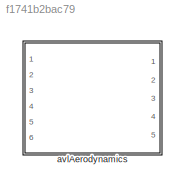
MODEL slx_f1741b2bac79
KIND library
CONFIG AbsTol = auto
CONFIG EnableMultiTasking = off
CONFIG FixedStep = auto
CONFIG MaxStep = auto
CONFIG MinStep = auto
CONFIG RelTol = 1e-3
CONFIG SampleTimeConstraint = Unconstrained
CONFIG SolverName = VariableStepAuto
CONFIG StartTime = 0.0
CONFIG StopTime = 10.0
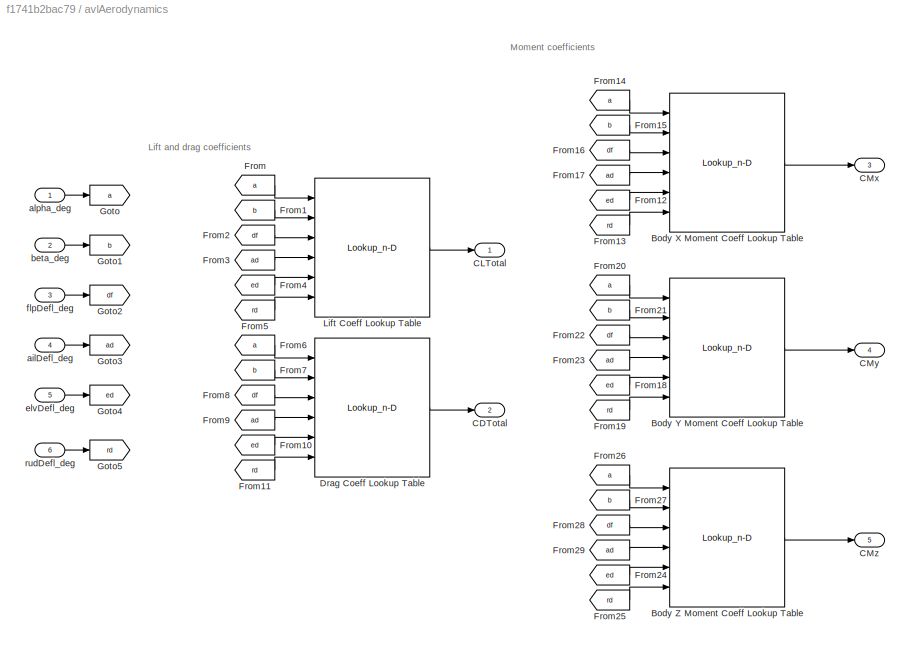
BLOCK [SubSystem] avlAerodynamics
  Ports = [6, 5]
  RequestExecContextInheritance = off
BLOCK [Lookup_n-D] avlAerodynamics/Body X Moment Coeff Lookup Table
  BreakpointsForDimension3 = [5, 7]
  DataSpecification = Lookup table object
  InputPortMap = u0,u1,u2,u3,u4,u5
  InternalRulePriority = Speed
  LookupTableObject = CMxTable
  NumberOfTableDimensions = 6
  Ports = [6, 1]
  RndMeth = Simplest
  Table = reshape(repmat([4 5 6;16 19 20;10 18 23],1,2),[3,3,2])
BLOCK [Lookup_n-D] avlAerodynamics/Body Y Moment Coeff Lookup Table
  BreakpointsForDimension3 = [5, 7]
  DataSpecification = Lookup table object
  InputPortMap = u0,u1,u2,u3,u4,u5
  InternalRulePriority = Speed
  LookupTableObject = CMyTable
  NumberOfTableDimensions = 6
  Ports = [6, 1]
  RndMeth = Simplest
  Table = reshape(repmat([4 5 6;16 19 20;10 18 23],1,2),[3,3,2])
BLOCK [Lookup_n-D] avlAerodynamics/Body Z Moment Coeff Lookup Table
  BreakpointsForDimension3 = [5, 7]
  DataSpecification = Lookup table object
  InputPortMap = u0,u1,u2,u3,u4,u5
  InternalRulePriority = Speed
  LookupTableObject = CMzTable
  NumberOfTableDimensions = 6
  Ports = [6, 1]
  RndMeth = Simplest
  Table = reshape(repmat([4 5 6;16 19 20;10 18 23],1,2),[3,3,2])
BLOCK [Outport] avlAerodynamics/CDTotal
  Port = 2
  VectorParamsAs1DForOutWhenUnconnected = off
BLOCK [Outport] avlAerodynamics/CLTotal
  VectorParamsAs1DForOutWhenUnconnected = off
BLOCK [Outport] avlAerodynamics/CMx
  Port = 3
  VectorParamsAs1DForOutWhenUnconnected = off
BLOCK [Outport] avlAerodynamics/CMy
  Port = 4
  VectorParamsAs1DForOutWhenUnconnected = off
BLOCK [Outport] avlAerodynamics/CMz
  Port = 5
  VectorParamsAs1DForOutWhenUnconnected = off
BLOCK [Lookup_n-D] avlAerodynamics/Drag Coeff Lookup Table
  BreakpointsForDimension3 = [5, 7]
  DataSpecification = Lookup table object
  InputPortMap = u0,u1,u2,u3,u4,u5
  InternalRulePriority = Speed
  LookupTableObject = CDTable
  NumberOfTableDimensions = 6
  Ports = [6, 1]
  RndMeth = Simplest
  Table = reshape(repmat([4 5 6;16 19 20;10 18 23],1,2),[3,3,2])
BLOCK [From] avlAerodynamics/From
  GotoTag = a
BLOCK [From] avlAerodynamics/From1
  GotoTag = b
BLOCK [From] avlAerodynamics/From10
  GotoTag = ed
BLOCK [From] avlAerodynamics/From11
  GotoTag = rd
BLOCK [From] avlAerodynamics/From12
  GotoTag = ed
BLOCK [From] avlAerodynamics/From13
  GotoTag = rd
BLOCK [From] avlAerodynamics/From14
  GotoTag = a
BLOCK [From] avlAerodynamics/From15
  GotoTag = b
BLOCK [From] avlAerodynamics/From16
  GotoTag = df
BLOCK [From] avlAerodynamics/From17
  GotoTag = ad
BLOCK [From] avlAerodynamics/From18
  GotoTag = ed
BLOCK [From] avlAerodynamics/From19
  GotoTag = rd
BLOCK [From] avlAerodynamics/From2
  GotoTag = df
BLOCK [From] avlAerodynamics/From20
  GotoTag = a
BLOCK [From] avlAerodynamics/From21
  GotoTag = b
BLOCK [From] avlAerodynamics/From22
  GotoTag = df
BLOCK [From] avlAerodynamics/From23
  GotoTag = ad
BLOCK [From] avlAerodynamics/From24
  GotoTag = ed
BLOCK [From] avlAerodynamics/From25
  GotoTag = rd
BLOCK [From] avlAerodynamics/From26
  GotoTag = a
BLOCK [From] avlAerodynamics/From27
  GotoTag = b
BLOCK [From] avlAerodynamics/From28
  GotoTag = df
BLOCK [From] avlAerodynamics/From29
  GotoTag = ad
BLOCK [From] avlAerodynamics/From3
  GotoTag = ad
BLOCK [From] avlAerodynamics/From4
  GotoTag = ed
BLOCK [From] avlAerodynamics/From5
  GotoTag = rd
BLOCK [From] avlAerodynamics/From6
  GotoTag = a
BLOCK [From] avlAerodynamics/From7
  GotoTag = b
BLOCK [From] avlAerodynamics/From8
  GotoTag = df
BLOCK [From] avlAerodynamics/From9
  GotoTag = ad
BLOCK [Goto] avlAerodynamics/Goto
  GotoTag = a
BLOCK [Goto] avlAerodynamics/Goto1
  GotoTag = b
BLOCK [Goto] avlAerodynamics/Goto2
  GotoTag = df
BLOCK [Goto] avlAerodynamics/Goto3
  GotoTag = ad
BLOCK [Goto] avlAerodynamics/Goto4
  GotoTag = ed
BLOCK [Goto] avlAerodynamics/Goto5
  GotoTag = rd
BLOCK [Lookup_n-D] avlAerodynamics/Lift Coeff Lookup Table
  BreakpointsForDimension3 = [5, 7]
  DataSpecification = Lookup table object
  InputPortMap = u0,u1,u2,u3,u4,u5
  InternalRulePriority = Speed
  LookupTableObject = CLTable
  NumberOfTableDimensions = 6
  Ports = [6, 1]
  RndMeth = Simplest
  Table = reshape(repmat([4 5 6;16 19 20;10 18 23],1,2),[3,3,2])
BLOCK [Inport] avlAerodynamics/ailDefl_deg
  Port = 4
BLOCK [Inport] avlAerodynamics/alpha_deg
BLOCK [Inport] avlAerodynamics/beta_deg
  Port = 2
BLOCK [Inport] avlAerodynamics/elvDefl_deg
  Port = 5
BLOCK [Inport] avlAerodynamics/flpDefl_deg
  Port = 3
BLOCK [Inport] avlAerodynamics/rudDefl_deg
  Port = 6
ANNOTATION avlAerodynamics: Lift and drag coefficients
ANNOTATION avlAerodynamics: Moment coefficients
LINE avlAerodynamics/Body X Moment Coeff Lookup Table:1 -> avlAerodynamics/CMx:1
LINE avlAerodynamics/Body Y Moment Coeff Lookup Table:1 -> avlAerodynamics/CMy:1
LINE avlAerodynamics/Body Z Moment Coeff Lookup Table:1 -> avlAerodynamics/CMz:1
LINE avlAerodynamics/Drag Coeff Lookup Table:1 -> avlAerodynamics/CDTotal:1
LINE avlAerodynamics/From10:1 -> avlAerodynamics/Drag Coeff Lookup Table:5
LINE avlAerodynamics/From11:1 -> avlAerodynamics/Drag Coeff Lookup Table:6
LINE avlAerodynamics/From12:1 -> avlAerodynamics/Body X Moment Coeff Lookup Table:5
LINE avlAerodynamics/From13:1 -> avlAerodynamics/Body X Moment Coeff Lookup Table:6
LINE avlAerodynamics/From14:1 -> avlAerodynamics/Body X Moment Coeff Lookup Table:1
LINE avlAerodynamics/From15:1 -> avlAerodynamics/Body X Moment Coeff Lookup Table:2
LINE avlAerodynamics/From16:1 -> avlAerodynamics/Body X Moment Coeff Lookup Table:3
LINE avlAerodynamics/From17:1 -> avlAerodynamics/Body X Moment Coeff Lookup Table:4
LINE avlAerodynamics/From18:1 -> avlAerodynamics/Body Y Moment Coeff Lookup Table:5
LINE avlAerodynamics/From19:1 -> avlAerodynamics/Body Y Moment Coeff Lookup Table:6
LINE avlAerodynamics/From1:1 -> avlAerodynamics/Lift Coeff Lookup Table:2
LINE avlAerodynamics/From20:1 -> avlAerodynamics/Body Y Moment Coeff Lookup Table:1
LINE avlAerodynamics/From21:1 -> avlAerodynamics/Body Y Moment Coeff Lookup Table:2
LINE avlAerodynamics/From22:1 -> avlAerodynamics/Body Y Moment Coeff Lookup Table:3
LINE avlAerodynamics/From23:1 -> avlAerodynamics/Body Y Moment Coeff Lookup Table:4
LINE avlAerodynamics/From24:1 -> avlAerodynamics/Body Z Moment Coeff Lookup Table:5
LINE avlAerodynamics/From25:1 -> avlAerodynamics/Body Z Moment Coeff Lookup Table:6
LINE avlAerodynamics/From26:1 -> avlAerodynamics/Body Z Moment Coeff Lookup Table:1
LINE avlAerodynamics/From27:1 -> avlAerodynamics/Body Z Moment Coeff Lookup Table:2
LINE avlAerodynamics/From28:1 -> avlAerodynamics/Body Z Moment Coeff Lookup Table:3
LINE avlAerodynamics/From29:1 -> avlAerodynamics/Body Z Moment Coeff Lookup Table:4
LINE avlAerodynamics/From2:1 -> avlAerodynamics/Lift Coeff Lookup Table:3
LINE avlAerodynamics/From3:1 -> avlAerodynamics/Lift Coeff Lookup Table:4
LINE avlAerodynamics/From4:1 -> avlAerodynamics/Lift Coeff Lookup Table:5
LINE avlAerodynamics/From5:1 -> avlAerodynamics/Lift Coeff Lookup Table:6
LINE avlAerodynamics/From6:1 -> avlAerodynamics/Drag Coeff Lookup Table:1
LINE avlAerodynamics/From7:1 -> avlAerodynamics/Drag Coeff Lookup Table:2
LINE avlAerodynamics/From8:1 -> avlAerodynamics/Drag Coeff Lookup Table:3
LINE avlAerodynamics/From9:1 -> avlAerodynamics/Drag Coeff Lookup Table:4
LINE avlAerodynamics/From:1 -> avlAerodynamics/Lift Coeff Lookup Table:1
LINE avlAerodynamics/Lift Coeff Lookup Table:1 -> avlAerodynamics/CLTotal:1
LINE avlAerodynamics/ailDefl_deg:1 -> avlAerodynamics/Goto3:1
LINE avlAerodynamics/alpha_deg:1 -> avlAerodynamics/Goto:1
LINE avlAerodynamics/beta_deg:1 -> avlAerodynamics/Goto1:1
LINE avlAerodynamics/elvDefl_deg:1 -> avlAerodynamics/Goto4:1
LINE avlAerodynamics/flpDefl_deg:1 -> avlAerodynamics/Goto2:1
LINE avlAerodynamics/rudDefl_deg:1 -> avlAerodynamics/Goto5:1
